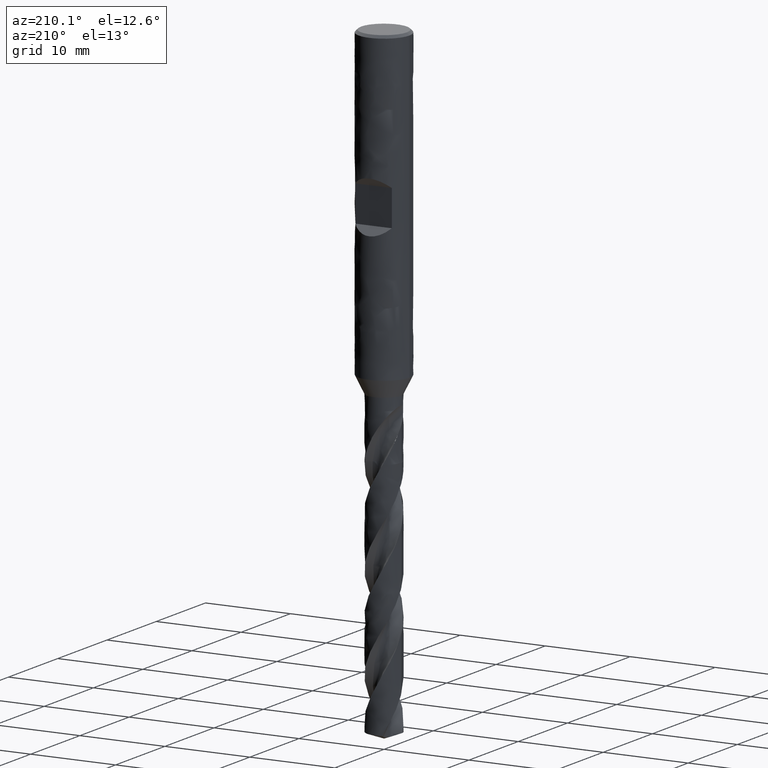
[diagram: clean part render]
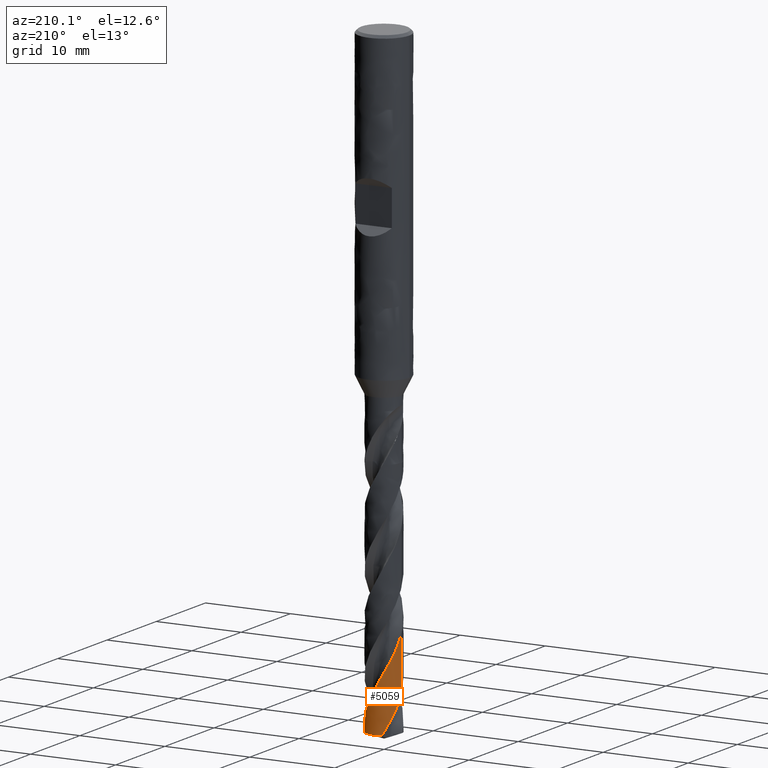
[diagram: same view with one face highlighted and labeled with its STEP entity id]
A machine part, auxiliary view. The second image highlights one B-rep face of the part: STEP entity #5059.
In plain terms, the highlighted face is a freeform B-spline surface patch.
Its self-contained STEP definition (entity closure, byte-faithful):
#1942 = VERTEX_POINT('', #1943);
#1943 = CARTESIAN_POINT('', (-2., 4.36240265969018E-15, -69.2434419904164));
#2133 = EDGE_CURVE('', #2134, #1942, #2136, .T.);
#2134 = VERTEX_POINT('', #2135);
#2135 = CARTESIAN_POINT('', (-0.823808410926605, 1.8224543072699, -73.2720595314676));
#2136 = B_SPLINE_CURVE_WITH_KNOTS('', 3, (#2137, #2138, #2139, #2140, #2141, #2142, #2143, #2144, #2145, #2146, #2147, #2148, #2149, #2150, #2151, #2152, #2153, #2154, #2155, #2156, #2157, #2158, #2159, #2160, #2161, #2162, #2163, #2164, #2165, #2166, #2167, #2168, #2169, #2170), .UNSPECIFIED., .F., .U., (4, 3, 3, 3, 3, 3, 3, 3, 3, 3, 3, 4), (0., 0.443804562876076, 0.88744105233288, 1.33091267914557, 1.77422161239977, 2.2173690403295, 2.66035516248259, 3.10317921393419, 3.54583944313204, 3.9883330726491, 4.43065623163008, 4.63468170992402), .UNSPECIFIED.);
#2137 = CARTESIAN_POINT('', (-0.823808410926605, 1.8224543072699, -73.2720595314676));
#2138 = CARTESIAN_POINT('', (-0.890440702528732, 1.79233435197545, -73.1434607479457));
#2139 = CARTESIAN_POINT('', (-0.955446853017881, 1.75854188359833, -73.0148171291206));
#2140 = CARTESIAN_POINT('', (-1.01838778342619, 1.72130366948087, -72.8862228998446));
#2141 = CARTESIAN_POINT('', (-1.08130487744733, 1.6840795578637, -72.7576773705452));
#2142 = CARTESIAN_POINT('', (-1.14220483900813, 1.64338476586677, -72.6290871977475));
#2143 = CARTESIAN_POINT('', (-1.20067599761685, 1.59949277858539, -72.5005462884148));
#2144 = CARTESIAN_POINT('', (-1.25912542737765, 1.55561710229115, -72.3720531470063));
#2145 = CARTESIAN_POINT('', (-1.31519117498541, 1.50851409383866, -72.2435153748925));
#2146 = CARTESIAN_POINT('', (-1.36849431546817, 1.45850036288351, -72.1150268535013));
#2147 = CARTESIAN_POINT('', (-1.42177790097361, 1.40850498014134, -71.9865854698604));
#2148 = CARTESIAN_POINT('', (-1.47234031587555, 1.35556403734271, -71.8580994557701));
#2149 = CARTESIAN_POINT('', (-1.51983988204025, 1.30003335840273, -71.7296626903091));
#2150 = CARTESIAN_POINT('', (-1.56732214326867, 1.24452291027618, -71.6012727166449));
#2151 = CARTESIAN_POINT('', (-1.61177881789765, 1.1863836659708, -71.4728381054116));
#2152 = CARTESIAN_POINT('', (-1.65290950470996, 1.12600629182944, -71.3444527494935));
#2153 = CARTESIAN_POINT('', (-1.69402521994178, 1.06565089506766, -71.2161141258776));
#2154 = CARTESIAN_POINT('', (-1.73184760618369, 1.00301462075356, -71.0877308453605));
#2155 = CARTESIAN_POINT('', (-1.76612106595834, 0.938518183296511, -70.9593968366981));
#2156 = CARTESIAN_POINT('', (-1.80038198646056, 0.874045342476781, -70.8311097802579));
#2157 = CARTESIAN_POINT('', (-1.83112168214917, 0.807666469619285, -70.7027780437945));
#2158 = CARTESIAN_POINT('', (-1.85813231876611, 0.739827200065609, -70.5744955986078));
#2159 = CARTESIAN_POINT('', (-1.88513296282879, 0.672013027572483, -70.4462606113656));
#2160 = CARTESIAN_POINT('', (-1.90842701649921, 0.602690053733818, -70.3179809193132));
#2161 = CARTESIAN_POINT('', (-1.92785678173259, 0.532323425304464, -70.1897505385519));
#2162 = CARTESIAN_POINT('', (-1.94727923437615, 0.461983280071614, -70.061568418599));
#2163 = CARTESIAN_POINT('', (-1.96285443121811, 0.390549137757778, -69.9333415710321));
#2164 = CARTESIAN_POINT('', (-1.97447657037197, 0.318500036189539, -69.8051640518707));
#2165 = CARTESIAN_POINT('', (-1.98609423210027, 0.246478691515749, -69.6770359130595));
#2166 = CARTESIAN_POINT('', (-1.99377030052835, 0.17379070799028, -69.5488630285273));
#2167 = CARTESIAN_POINT('', (-1.99745200136177, 0.100923249340682, -69.4207394840212));
#2168 = CARTESIAN_POINT('', (-1.99915021850962, 0.0673124880653774, -69.361641363297));
#2169 = CARTESIAN_POINT('', (-2., 0.033655283655996, -69.3025391728378));
#2170 = CARTESIAN_POINT('', (-2., 4.28174186941019E-15, -69.2434419904164));
#2492 = VERTEX_POINT('', #2493);
#2493 = CARTESIAN_POINT('', (-2., 3.98026746596918E-15, -63.002700676479));
#2647 = EDGE_CURVE('', #2492, #1942, #2648, .T.);
#2648 = LINE('', #2649, #2650);
#2649 = CARTESIAN_POINT('', (-2., 3.98026746596918E-15, -63.002700676479));
#2650 = VECTOR('', #2651, 6.24074131393738);
#2651 = DIRECTION('', (0., 3.82135193721003E-16, -6.24074131393738));
#2765 = VERTEX_POINT('', #2766);
#2766 = CARTESIAN_POINT('', (1.95011197861073, 0.443918090281234, -73.2720595314676));
#2866 = EDGE_CURVE('', #2867, #2765, #2869, .T.);
#2867 = VERTEX_POINT('', #2868);
#2868 = CARTESIAN_POINT('', (1.85418896536857, 0.74965544132318, -72.7057447653197));
#2869 = B_SPLINE_CURVE_WITH_KNOTS('', 3, (#2870, #2871, #2872, #2873, #2874, #2875, #2876), .UNSPECIFIED., .F., .U., (4, 3, 4), (0., 0.442676846162937, 0.650793929936356), .UNSPECIFIED.);
#2870 = CARTESIAN_POINT('', (1.85418896536856, 0.749655441323199, -72.7057447653197));
#2871 = CARTESIAN_POINT('', (1.88145027370257, 0.682227641419266, -72.8341346255722));
#2872 = CARTESIAN_POINT('', (1.90503642483562, 0.613290233243762, -72.9625731702535));
#2873 = CARTESIAN_POINT('', (1.92479178764345, 0.543301549988119, -73.0909669131077));
#2874 = CARTESIAN_POINT('', (1.93407943964534, 0.510397546124892, -73.1513290747369));
#2875 = CARTESIAN_POINT('', (1.94252358959568, 0.477253538059992, -73.2116965562259));
#2876 = CARTESIAN_POINT('', (1.95011197861073, 0.443918090281234, -73.2720595314676));
#4541 = EDGE_CURVE('', #2134, #2765, #4542, .T.);
#4542 = CIRCLE('', #4543, 2.);
#4543 = AXIS2_PLACEMENT_3D('', #4544, #4545, #4546);
#4544 = CARTESIAN_POINT('', (2.74726220195251E-31, 4.48661965860731E-15, -73.2720595314676));
#4545 = DIRECTION('', (3.74939945665464E-33, 6.12323399573677E-17, -1.));
#4546 = DIRECTION('', (-1., 6.12323399573677E-17, 0.));
#5059 = ADVANCED_FACE('', (#5060), #5154, .T.);
#5060 = FACE_OUTER_BOUND('', #5061, .T.);
#5061 = EDGE_LOOP('', (#5062, #5063, #5064, #5152, #5153));
#5062 = ORIENTED_EDGE('', *, *, #2133, .T.);
#5063 = ORIENTED_EDGE('', *, *, #2647, .F.);
#5064 = ORIENTED_EDGE('', *, *, #5065, .F.);
#5065 = EDGE_CURVE('', #2867, #2492, #5066, .T.);
#5066 = B_SPLINE_CURVE_WITH_KNOTS('', 3, (#5067, #5068, #5069, #5070, #5071, #5072, #5073, #5074, #5075, #5076, #5077, #5078, #5079, #5080, #5081, #5082, #5083, #5084, #5085, #5086, #5087, #5088, #5089, #5090, #5091, #5092, #5093, #5094, #5095, #5096, #5097, #5098, #5099, #5100, #5101, #5102, #5103, #5104, #5105, #5106, #5107, #5108, #5109, #5110, #5111, #5112, #5113, #5114, #5115, #5116, #5117, #5118, #5119, #5120, #5121, #5122, #5123, #5124, #5125, #5126, #5127, #5128, #5129, #5130, #5131, #5132, #5133, #5134, #5135, #5136, #5137, #5138, #5139, #5140, #5141, #5142, #5143, #5144, #5145, #5146, #5147, #5148, #5149, #5150, #5151), .UNSPECIFIED., .F., .U., (4, 3, 3, 3, 3, 3, 3, 3, 3, 3, 3, 3, 3, 3, 3, 3, 3, 3, 3, 3, 3, 3, 3, 3, 3, 3, 3, 3, 4), (0., 0.443863979266041, 0.8875602735833, 1.33109240828025, 1.77446283119239, 2.21767298816035, 2.66072335267319, 3.10361344358493, 3.54634181467923, 3.98890602273807, 4.43130255617656, 4.72638338456069, 4.78474840751409, 4.84312739262742, 5.28761991478715, 5.73192076531484, 6.1760381958801, 6.61997887977852, 7.06374810759563, 7.50734993518153, 7.95078729305671, 8.39406206365075, 8.83717513071998, 9.28012640366227, 9.72291481807784, 10.1655383126818, 10.6079937814451, 11.0502769985145, 11.1594091210484), .UNSPECIFIED.);
#5067 = CARTESIAN_POINT('', (1.85418896536857, 0.74965544132318, -72.7057447653197));
#5068 = CARTESIAN_POINT('', (1.82685454997726, 0.817264063364142, -72.5770106000633));
#5069 = CARTESIAN_POINT('', (1.79580450280413, 0.88340614865924, -72.4482334753673));
#5070 = CARTESIAN_POINT('', (1.76124414570829, 0.947638675449835, -72.3195076210768));
#5071 = CARTESIAN_POINT('', (1.72669684498102, 1.01184693618491, -72.1908303974238));
#5072 = CARTESIAN_POINT('', (1.68861754855032, 1.07419231392225, -72.0621101950388));
#5073 = CARTESIAN_POINT('', (1.64725854242027, 1.13425715533271, -71.9334412708206));
#5074 = CARTESIAN_POINT('', (1.60591483837597, 1.19429977383601, -71.8048199517819));
#5075 = CARTESIAN_POINT('', (1.56126477399032, 1.25210576708275, -71.676155645373));
#5076 = CARTESIAN_POINT('', (1.51360455866072, 1.30728774185391, -71.5475426011388));
#5077 = CARTESIAN_POINT('', (1.46596172024225, 1.36244959728099, -71.4189764492114));
#5078 = CARTESIAN_POINT('', (1.41527741200517, 1.415028140645, -71.2903673292187));
#5079 = CARTESIAN_POINT('', (1.36188824571946, 1.46467075009068, -71.1618094277934));
#5080 = CARTESIAN_POINT('', (1.30851837811652, 1.51429541512857, -71.0332979964355));
#5081 = CARTESIAN_POINT('', (1.25240798642631, 1.56102123626042, -70.904743644309));
#5082 = CARTESIAN_POINT('', (1.19393010864667, 1.60453447942603, -70.7762404396122));
#5083 = CARTESIAN_POINT('', (1.13547331414664, 1.64803203457581, -70.647783564726));
#5084 = CARTESIAN_POINT('', (1.07460936631073, 1.68835009734362, -70.5192838458751));
#5085 = CARTESIAN_POINT('', (1.01174334651911, 1.72521749375965, -70.3908351733641));
#5086 = CARTESIAN_POINT('', (0.948900068528851, 1.76207155338406, -70.2624329671986));
#5087 = CARTESIAN_POINT('', (0.884011416896823, 1.79550366589739, -70.1339880250583));
#5088 = CARTESIAN_POINT('', (0.817509773166371, 1.82528840756126, -70.0055939971883));
#5089 = CARTESIAN_POINT('', (0.751032412286008, 1.85506227342754, -69.8772468519628));
#5090 = CARTESIAN_POINT('', (0.682895514288625, 1.88121278231032, -69.7488571103929));
#5091 = CARTESIAN_POINT('', (0.613553705781225, 1.90356293568727, -69.6205181197365));
#5092 = CARTESIAN_POINT('', (0.544237609115468, 1.92590480165989, -69.492226716991));
#5093 = CARTESIAN_POINT('', (0.473667260037244, 1.94446529866216, -69.3638928726899));
#5094 = CARTESIAN_POINT('', (0.402314129410354, 1.95911800085586, -69.2356096184488));
#5095 = CARTESIAN_POINT('', (0.330988032395471, 1.97376515156973, -69.1073749669767));
#5096 = CARTESIAN_POINT('', (0.258827620862429, 1.98451815419499, -68.9790980027319));
#5097 = CARTESIAN_POINT('', (0.186315475354255, 1.99130272526393, -68.8508715026361));
#5098 = CARTESIAN_POINT('', (0.137949490661388, 1.99582807006193, -68.7653437486662));
#5099 = CARTESIAN_POINT('', (0.0894074710062135, 1.99859117848131, -68.6798039965364));
#5100 = CARTESIAN_POINT('', (0.0408337059741418, 1.99958310866455, -68.5942800271179));
#5101 = CARTESIAN_POINT('', (0.0312261386965445, 1.99977930584967, -68.5773639554587));
#5102 = CARTESIAN_POINT('', (0.0216169727728885, 1.99990626152112, -68.5604478468894));
#5103 = CARTESIAN_POINT('', (0.012007339345355, 1.99996395562567, -68.5435319094491));
#5104 = CARTESIAN_POINT('', (0.00239540708828173, 2.00002166353188, -68.5266119253553));
#5105 = CARTESIAN_POINT('', (-0.00721711105725628, 2.00001007749208, -68.5096918958544));
#5106 = CARTESIAN_POINT('', (-0.016829094190319, 1.99992919414382, -68.4927720355776));
#5107 = CARTESIAN_POINT('', (-0.0900138989188983, 1.99931335535529, -68.3639456890009));
#5108 = CARTESIAN_POINT('', (-0.16319929753694, 1.99467403400936, -68.235076356241));
#5109 = CARTESIAN_POINT('', (-0.235890219498105, 1.98604023230787, -68.1062582293896));
#5110 = CARTESIAN_POINT('', (-0.308549796077845, 1.97741015362709, -67.9774956507857));
#5111 = CARTESIAN_POINT('', (-0.380769362085776, 1.96478260947489, -67.8486901711083));
#5112 = CARTESIAN_POINT('', (-0.452060127720974, 1.94824065272365, -67.7199358143762));
#5113 = CARTESIAN_POINT('', (-0.523321462510972, 1.9317055249602, -67.5912346110856));
#5114 = CARTESIAN_POINT('', (-0.593707888762282, 1.91124688288472, -67.4624905493749));
#5115 = CARTESIAN_POINT('', (-0.662742880721454, 1.88700076154015, -67.3337975678273));
#5116 = CARTESIAN_POINT('', (-0.731750398630107, 1.8627642894929, -67.2051558025887));
#5117 = CARTESIAN_POINT('', (-0.799459010940516, 1.83472527878762, -67.0764711875074));
#5118 = CARTESIAN_POINT('', (-0.865410254274448, 1.80307101684783, -66.9478376418334));
#5119 = CARTESIAN_POINT('', (-0.931336026318746, 1.77142898022532, -66.8192537762281));
#5120 = CARTESIAN_POINT('', (-0.995554864800751, 1.73615092943497, -66.6906270428141));
#5121 = CARTESIAN_POINT('', (-1.05763191245214, 1.69747304478241, -66.5620513927518));
#5122 = CARTESIAN_POINT('', (-1.11968554317537, 1.65880975034122, -66.4335242444606));
#5123 = CARTESIAN_POINT('', (-1.17964506078904, 1.6167204904663, -66.3049541906202));
#5124 = CARTESIAN_POINT('', (-1.2371044386227, 1.57148738713998, -66.1764352521976));
#5125 = CARTESIAN_POINT('', (-1.29454251283075, 1.52627105442856, -66.0479639634268));
#5126 = CARTESIAN_POINT('', (-1.34952477311842, 1.47787977975622, -65.9194497176664));
#5127 = CARTESIAN_POINT('', (-1.40167886938225, 1.42663812760185, -65.7909866316128));
#5128 = CARTESIAN_POINT('', (-1.45381384323215, 1.37541526331177, -65.6625706468317));
#5129 = CARTESIAN_POINT('', (-1.50316110547378, 1.32130641139516, -65.5341116453621));
#5130 = CARTESIAN_POINT('', (-1.54938639646606, 1.26467458045378, -65.4057038548329));
#5131 = CARTESIAN_POINT('', (-1.59559482479666, 1.2080634084068, -65.2773429065643));
#5132 = CARTESIAN_POINT('', (-1.63871741233999, 1.14888963231815, -65.1489388785073));
#5133 = CARTESIAN_POINT('', (-1.67846192416493, 1.08755026050688, -65.0205861148623));
#5134 = CARTESIAN_POINT('', (-1.71819192405358, 1.02623328557543, -64.892280216735));
#5135 = CARTESIAN_POINT('', (-1.75457528028242, 0.96270760233765, -64.7639311766387));
#5136 = CARTESIAN_POINT('', (-1.78736519583754, 0.897399385284303, -64.6356334524838));
#5137 = CARTESIAN_POINT('', (-1.82014305562567, 0.832115179901451, -64.5073828991569));
#5138 = CARTESIAN_POINT('', (-1.84935390184927, 0.7650023888099, -64.3790891464218));
#5139 = CARTESIAN_POINT('', (-1.87479923251356, 0.696511189979517, -64.2508467555225));
#5140 = CARTESIAN_POINT('', (-1.90023508587673, 0.62804550120143, -64.1226521294478));
#5141 = CARTESIAN_POINT('', (-1.92192660625402, 0.558152974446336, -63.9944142546275));
#5142 = CARTESIAN_POINT('', (-1.93972585902578, 0.487302361811549, -63.8662277786613));
#5143 = CARTESIAN_POINT('', (-1.95751835496144, 0.416478645023678, -63.738089964008));
#5144 = CARTESIAN_POINT('', (-1.97143434529802, 0.344646600494142, -63.6099088623061));
#5145 = CARTESIAN_POINT('', (-1.98137812824272, 0.272287922836431, -63.4817791847767));
#5146 = CARTESIAN_POINT('', (-1.99131803998777, 0.199957415030084, -63.3536993892255));
#5147 = CARTESIAN_POINT('', (-1.9972959697331, 0.127048787314281, -63.2255762818926));
#5148 = CARTESIAN_POINT('', (-1.9992694914065, 0.0540509086990527, -63.0975046099142));
#5149 = CARTESIAN_POINT('', (-1.99975645225144, 0.0360388903219069, -63.0659032900809));
#5150 = CARTESIAN_POINT('', (-2., 0.0180194386860738, -63.0343015179476));
#5151 = CARTESIAN_POINT('', (-2., 2.30799403512753E-15, -63.002700676479));
#5152 = ORIENTED_EDGE('', *, *, #2866, .T.);
#5153 = ORIENTED_EDGE('', *, *, #4541, .F.);
#5154 = (
   BOUNDED_SURFACE ()
   B_SPLINE_SURFACE (2, 1, ((#5155, #5156), (#5157, #5158), (#5159, #5160), (#5161, #5162), (#5163, #5164)), .UNSPECIFIED., .F., .F., .U.)
   B_SPLINE_SURFACE_WITH_KNOTS ((3, 2, 3), (2, 2), (0., 3.14159265358979, 5.80609739760172), (0.708852871326471, 1.), .UNSPECIFIED.)
   GEOMETRIC_REPRESENTATION_ITEM ()
   RATIONAL_B_SPLINE_SURFACE (((1., 1.), (0.707106781186548, 0.707106781186548), (1., 1.), (0.751586072075381, 0.751586072075381), (0.924550828416179, 0.92455082841618)))
   REPRESENTATION_ITEM ('')
   SURFACE ()
);
#5155 = CARTESIAN_POINT('', (-2., 3.98026746596918E-15, -63.002700676479));
#5156 = CARTESIAN_POINT('', (-2., 4.60908433852204E-15, -73.2720595314676));
#5157 = CARTESIAN_POINT('', (-2., 2., -63.002700676479));
#5158 = CARTESIAN_POINT('', (-2., 2., -73.2720595314676));
#5159 = CARTESIAN_POINT('', (2.46519032881566E-31, 2., -63.002700676479));
#5160 = CARTESIAN_POINT('', (2.71170936169723E-31, 2., -73.2720595314676));
#5161 = CARTESIAN_POINT('', (1.5958898020075, 2., -63.002700676479));
#5162 = CARTESIAN_POINT('', (1.5958898020075, 2., -73.2720595314676));
#5163 = CARTESIAN_POINT('', (1.95011197861073, 0.443918090281234, -63.002700676479));
#5164 = CARTESIAN_POINT('', (1.95011197861073, 0.443918090281235, -73.2720595314676));